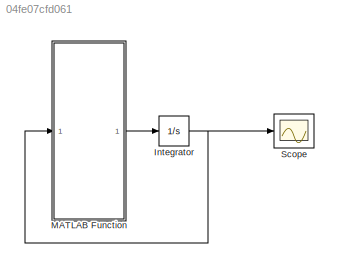
MODEL slx_04fe07cfd061
KIND model
CONFIG AbsTol = auto
CONFIG EnableMultiTasking = off
CONFIG FixedStep = auto
CONFIG MaxStep = auto
CONFIG MinStep = auto
CONFIG RelTol = 1e-3
CONFIG SampleTimeConstraint = Unconstrained
CONFIG SolverName = VariableStepAuto
CONFIG StartTime = 0.0
CONFIG StopTime = 20
BLOCK [Integrator] Integrator
  InitialCondition = [0.1; 300]
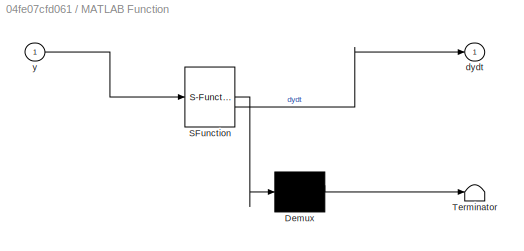
BLOCK [SubSystem] MATLAB Function
  ErrorFcn = Stateflow.Translate.translate
  PermitHierarchicalResolution = ExplicitOnly
  SFBlockType = MATLAB Function
  TreatAsAtomicUnit = on
BLOCK [Demux] MATLAB Function/ Demux 
  Outputs = 1
BLOCK [S-Function] MATLAB Function/ SFunction 
  EnableBusSupport = off
  FunctionName = sf_sfun
  Parameters = CA_in,Cp,E_R,F,T_cool,T_in,UA,V,dH,k0,rho
  PortCounts = [1 2]
  SFcnIsStateOwnerBlock = off
  SFunctionDeploymentMode = off
  Tag = Stateflow S-Function 2
BLOCK [Terminator] MATLAB Function/ Terminator 
BLOCK [Outport] MATLAB Function/dydt
BLOCK [Inport] MATLAB Function/y
BLOCK [Scope] Scope
  ActiveDisplayYMaximum = 464.49323645064118
  ActiveDisplayYMinimum = -51.607797445034372
  Floating = off
  GraphicalSettings = {"Style":{"BackgroundColor":[0.12941176470588237,0.12941176470588237,0.12941176470588237],"AxesColor":[0.07058823529411765,0.07058823529411765,0.07058823529411765],"LabelsColor":[0.8509803921568627,0.8509803921568627,0.8509803921568627],"PreserveColors":false,"Visible":[true,true],"LineStyle":["-","-"],"LineWidth":[1.5,1.5],"BarWidth":[0.9,0.9],"LineColor":["auto","auto"],"LineFaceAlpha":[1,1],"Li...<+2127ch>
  MultipleDisplayCache = [{"MaxYLimMag":464.49323645064118,"MaxYLimReal":464.49323645064118,"MinYLimMag":0,"MinYLimReal":-51.607797445034372,"PlotAsMagnitudePhase":false,"ShowGrid":true,"ShowLegend":false,"Title":"%<SignalLabel>","YLabel":""}]
  NumInputPorts = 1
  ScopeFrameLocation = window
  WasSavedAsWebScope = on
  WindowPosition = [1.000000,1.000000,1536.000000,841.000000,]
NET Integrator:1 -> MATLAB Function:1, Scope:1
LINE MATLAB Function:1 -> Integrator:1
note: NET lines group one-source signal fan-out (src -> all destinations, sorted); 1:1 wires keep LINE
CHART MATLAB Function states=1 transitions=1
  STATE_LABEL 'eML_blk_kernel()'
  STATE_LABEL 'SCRIPT:\nfunction dydt = fcn(y, F, V, CA_in, T_in, T_cool, k0, E_R, dH, rho, Cp, UA)\n\n    % This is the exact same logic as your script!\n\n    % Unpack variables\n    CA = y(1);\n    T  = y(2);\n\n    % Arrhenius\n    k = k0 * exp(-E_R / T);\n\n    % Mass Balance\n    dCAdt = (F/V)*(CA_in - CA) - k*CA;\n\n    % Energy Balance\n    dTdt = (F/V)*(T_in - T) + (-dH*k*CA)/(rho*Cp) - (UA/(rho*Cp*V))*(T - T_cool);\n\n ...<+41ch>'
CHART  states=0 transitions=0
